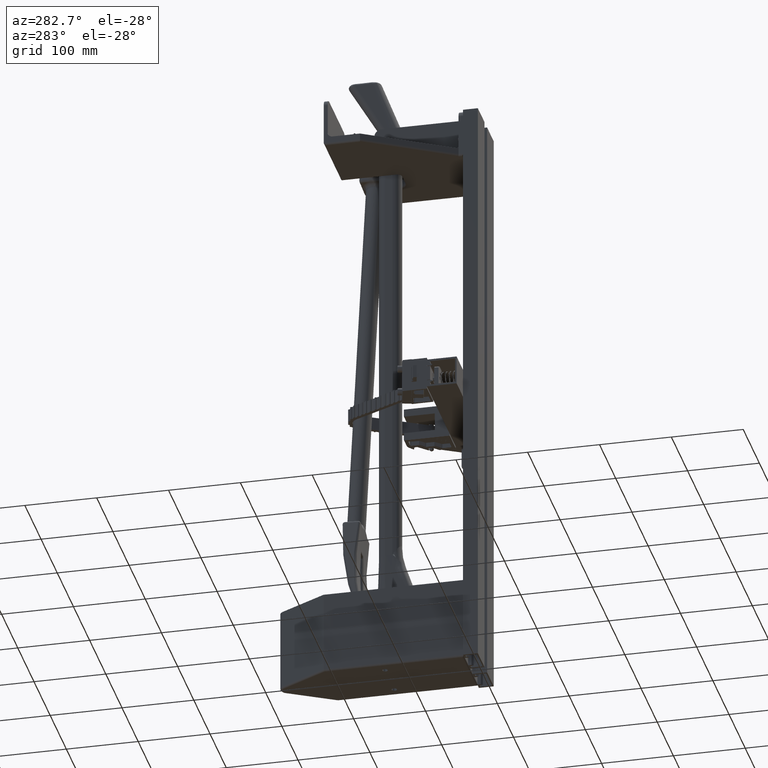
[diagram: clean part render]
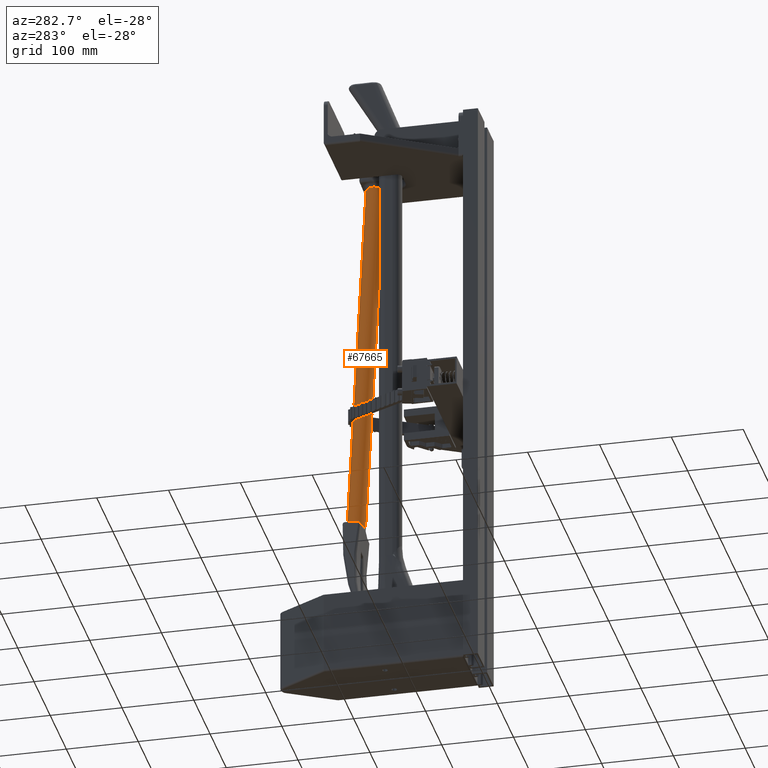
[diagram: same view with one face highlighted and labeled with its STEP entity id]
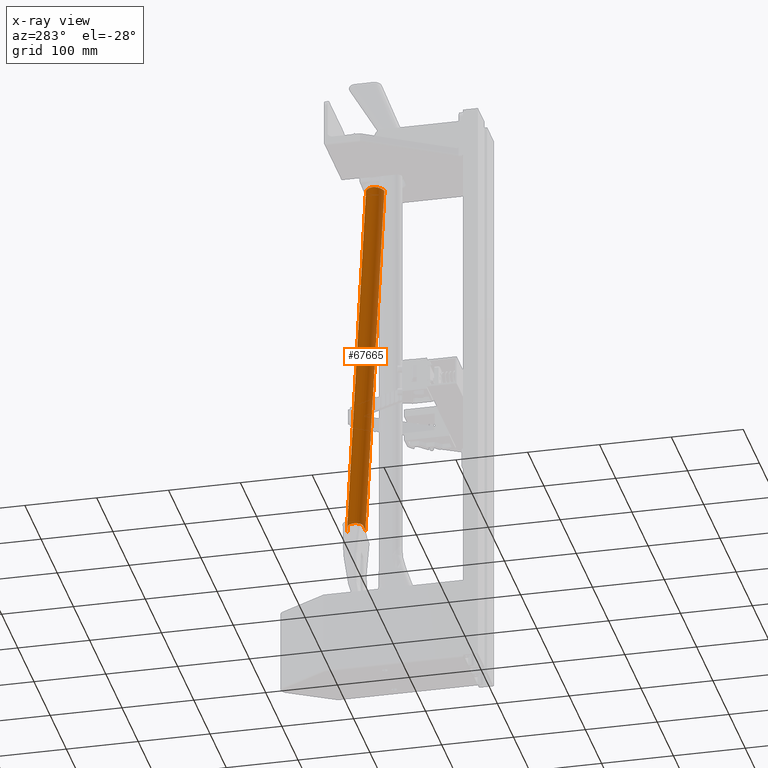
[diagram: x-ray of the same camera — body ghosted, the highlighted face saturated]
A machine part, auxiliary view. The second image highlights one B-rep face of the part: STEP entity #67665.
The next image is the same camera in x-ray: the body ghosted, the highlighted face saturated — about 0% of this face is hidden behind the body in this view.
In plain terms, the highlighted cylindrical surface (edge-blend (fillet) strip) has radius 12.7 mm, axis along (0.0633, -0.0348, 0.9974).
Its self-contained STEP definition (entity closure, byte-faithful):
#6961 = B_SPLINE_CURVE_WITH_KNOTS ( 'NONE', 3,
 ( #44569, #44573, #44574, #44575, #44576, #44577, #44578, #44579, #44580, #44581, #44582, #44583 ),
 .UNSPECIFIED., .F., .F.,
 ( 4, 2, 2, 2, 2, 4 ),
 ( 0.0000000000000000000, 0.001860697265574105800, 0.002791045898361159100, 0.003721394531148212900, 0.005582091796722323500, 0.007442789062296434500 ),
 .UNSPECIFIED. ) ;
#6962 = B_SPLINE_CURVE_WITH_KNOTS ( 'NONE', 3,
 ( #44518, #44552, #44554, #44556 ),
 .UNSPECIFIED., .F., .F.,
 ( 4, 4 ),
 ( 5.120144759562794700E-017, 0.0001951425113811401300 ),
 .UNSPECIFIED. ) ;
#6963 = B_SPLINE_CURVE_WITH_KNOTS ( 'NONE', 3,
 ( #44558, #44564, #44565, #44566, #44567, #44568 ),
 .UNSPECIFIED., .F., .F.,
 ( 4, 2, 4 ),
 ( 0.0000000000000000000, 0.002134510418358413500, 0.004269020836716827000 ),
 .UNSPECIFIED. ) ;
#6965 = B_SPLINE_CURVE_WITH_KNOTS ( 'NONE', 3,
 ( #44417, #44532, #44534, #44536, #44538, #44539, #44541, #44543 ),
 .UNSPECIFIED., .F., .F.,
 ( 4, 2, 2, 4 ),
 ( 0.0000000000000000000, 0.003140231042393741600, 0.004710346563590612400, 0.006280462084787484900 ),
 .UNSPECIFIED. ) ;
#6972 = B_SPLINE_CURVE_WITH_KNOTS ( 'NONE', 3,
 ( #44495, #44520, #44522, #44524, #44526, #44528 ),
 .UNSPECIFIED., .F., .F.,
 ( 4, 2, 4 ),
 ( 0.0000000000000000000, 0.002135449621330979100, 0.004270899242661958100 ),
 .UNSPECIFIED. ) ;
#6973 = B_SPLINE_CURVE_WITH_KNOTS ( 'NONE', 3,
 ( #44489, #44497, #44499, #44501, #44503, #44505, #44507, #44508, #44510, #44512, #44514, #44516 ),
 .UNSPECIFIED., .F., .F.,
 ( 4, 2, 2, 2, 2, 4 ),
 ( 0.007442789062296451000, 0.009304050983829342100, 0.01116531290536223500, 0.01209594386612868100, 0.01302657482689512400, 0.01488783674842801400 ),
 .UNSPECIFIED. ) ;
#6991 = B_SPLINE_CURVE_WITH_KNOTS ( 'NONE', 3,
 ( #44607, #44611, #44612, #44613, #44614, #44615, #44616, #44617, #44618, #44619, #44620, #44621, #44622, #44623, #44624, #44625, #44626, #44627 ),
 .UNSPECIFIED., .F., .F.,
 ( 4, 2, 2, 2, 2, 2, 2, 2, 4 ),
 ( 0.0000000000000000000, 0.001549146281355803800, 0.002323719422033708000, 0.003098292562711609800, 0.004647438844067412600, 0.006196585125423215300, 0.009294877688135012500, 0.01084402396949091100, 0.01239317025084681100 ),
 .UNSPECIFIED. ) ;
#6995 = B_SPLINE_CURVE_WITH_KNOTS ( 'NONE', 3,
 ( #44529, #44586, #44587, #44588 ),
 .UNSPECIFIED., .F., .F.,
 ( 4, 4 ),
 ( 1.634760458060131600E-005, 3.269521018721603200E-005 ),
 .UNSPECIFIED. ) ;
#6998 = B_SPLINE_CURVE_WITH_KNOTS ( 'NONE', 3,
 ( #44572, #44590, #44591, #44592, #44593, #44594, #44595, #44596, #44597, #44598, #44599, #44600, #44601, #44602, #44603, #44604, #44605, #44606 ),
 .UNSPECIFIED., .F., .F.,
 ( 4, 2, 2, 2, 2, 2, 2, 2, 4 ),
 ( -1.022221796951950700E-006, 0.001580250447222684100, 0.003161523116242319900, 0.006324068454281376800, 0.007905341123300905700, 0.009486613792320432900, 0.01027725012683019700, 0.01106788646133996200, 0.01264915913035940200 ),
 .UNSPECIFIED. ) ;
#8652 = ORIENTED_EDGE ( 'NONE', *, *, #25854, .T. ) ;
#18983 = FACE_OUTER_BOUND ( 'NONE', #26586, .T. ) ;
#18985 = CYLINDRICAL_SURFACE ( 'NONE', #56248, 0.5000000000000000000 ) ;
#19758 = CARTESIAN_POINT ( 'NONE',  ( 22.24334691355886700, 0.4999409714679747300, 0.007682776038628535800 ) ) ;
#19759 = CARTESIAN_POINT ( 'NONE',  ( 22.24295462100600700, 0.5000000000000020000, -9.333874257854392600E-016 ) ) ;
#19760 = CARTESIAN_POINT ( 'NONE',  ( 0.9785533905932734000, 0.5000000000000001100, 5.367763274363487600E-017 ) ) ;
#19761 = CARTESIAN_POINT ( 'NONE',  ( 0.9999999999999992200, 0.4166666666666666300, 0.2763853991962834700 ) ) ;
#19762 = CARTESIAN_POINT ( 'NONE',  ( 0.9999999999999992200, 0.2763853991962833000, 0.4166666666666666900 ) ) ;
#19763 = CARTESIAN_POINT ( 'NONE',  ( 0.9859056437066584500, 0.1232853945137265500, 0.4845623917511498500 ) ) ;
#19764 = CARTESIAN_POINT ( 'NONE',  ( 0.9859056437066542300, -0.1232853945136882200, 0.4845623917511595600 ) ) ;
#19765 = CARTESIAN_POINT ( 'NONE',  ( 0.9999999999999992200, -0.2763853991962831300, 0.4166666666666666900 ) ) ;
#19766 = CARTESIAN_POINT ( 'NONE',  ( 0.9999999999999992200, -0.4166666666666667400, 0.2763853991962831300 ) ) ;
#19767 = CARTESIAN_POINT ( 'NONE',  ( 0.9785533905932738400, -0.4999999999999998300, 1.018170009257836800E-017 ) ) ;
#19768 = CARTESIAN_POINT ( 'NONE',  ( 22.24940978952233200, -0.4999999999999979500, -2.766180753815019700E-020 ) ) ;
#19769 = CARTESIAN_POINT ( 'NONE',  ( 22.24944262065605800, -0.4999995857705233400, 0.0006436065199730021700 ) ) ;
#19770 = CARTESIAN_POINT ( 'NONE',  ( 22.00000000000000400, -0.3333333333333325400, 0.3726779962499637300 ) ) ;
#19771 = CARTESIAN_POINT ( 'NONE',  ( 22.00000000000000400, 0.3333333333333339300, 0.3726779962499662300 ) ) ;
#23158 = ORIENTED_EDGE ( 'NONE', *, *, #25853, .T. ) ;
#23165 = ORIENTED_EDGE ( 'NONE', *, *, #25849, .T. ) ;
#23166 = ORIENTED_EDGE ( 'NONE', *, *, #25848, .T. ) ;
#23167 = ORIENTED_EDGE ( 'NONE', *, *, #25852, .T. ) ;
#23168 = ORIENTED_EDGE ( 'NONE', *, *, #25850, .T. ) ;
#23169 = ORIENTED_EDGE ( 'NONE', *, *, #25847, .T. ) ;
#23170 = ORIENTED_EDGE ( 'NONE', *, *, #25851, .T. ) ;
#25847 = EDGE_CURVE ( 'NONE', #66513, #66515, #6973, .T. ) ;
#25848 = EDGE_CURVE ( 'NONE', #66517, #66519, #6972, .T. ) ;
#25849 = EDGE_CURVE ( 'NONE', #66519, #66520, #6965, .T. ) ;
#25850 = EDGE_CURVE ( 'NONE', #66511, #66513, #40508, .T. ) ;
#25851 = EDGE_CURVE ( 'NONE', #66510, #66511, #6962, .T. ) ;
#25852 = EDGE_CURVE ( 'NONE', #66515, #66517, #40514, .T. ) ;
#25853 = EDGE_CURVE ( 'NONE', #66520, #66522, #6963, .T. ) ;
#25854 = EDGE_CURVE ( 'NONE', #66522, #66524, #40516, .T. ) ;
#25855 = EDGE_CURVE ( 'NONE', #66524, #66526, #6961, .T. ) ;
#25856 = EDGE_CURVE ( 'NONE', #66528, #66526, #40513, .T. ) ;
#25857 = EDGE_CURVE ( 'NONE', #66528, #66529, #6995, .T. ) ;
#25858 = EDGE_CURVE ( 'NONE', #66529, #66531, #6998, .T. ) ;
#25859 = EDGE_CURVE ( 'NONE', #66531, #66533, #40520, .T. ) ;
#25860 = EDGE_CURVE ( 'NONE', #66533, #66510, #6991, .T. ) ;
#26586 = EDGE_LOOP ( 'NONE', ( #23170, #23168, #23169, #23167, #23166, #23165, #23158, #8652, #57253, #57233, #57228, #57197, #57249, #57193 ) ) ;
#37149 = AXIS2_PLACEMENT_3D ( 'NONE', #44549, #44560, #44561 ) ;
#37151 = AXIS2_PLACEMENT_3D ( 'NONE', #44562, #44570, #44571 ) ;
#37153 = AXIS2_PLACEMENT_3D ( 'NONE', #44589, #44608, #44609 ) ;
#40506 = VECTOR ( 'NONE', #44548, 39.37007874015748100 ) ;
#40508 = LINE ( 'NONE', #44546, #40506 ) ;
#40513 = LINE ( 'NONE', #44584, #40515 ) ;
#40514 = CIRCLE ( 'NONE', #37149, 0.5000000000000000000 ) ;
#40515 = VECTOR ( 'NONE', #44585, 39.37007874015748100 ) ;
#40516 = CIRCLE ( 'NONE', #37151, 0.5000000000000000000 ) ;
#40520 = CIRCLE ( 'NONE', #37153, 0.5000000000000000000 ) ;
#44417 = CARTESIAN_POINT ( 'NONE',  ( 0.9859056437066584500, 0.1232853945137265500, 0.4845623917511498500 ) ) ;
#44489 = CARTESIAN_POINT ( 'NONE',  ( 0.9785533905932734000, 0.5000000000000001100, 5.367763274363487600E-017 ) ) ;
#44495 = CARTESIAN_POINT ( 'NONE',  ( 0.9999999999999992200, 0.2763853991962833000, 0.4166666666666666900 ) ) ;
#44497 = CARTESIAN_POINT ( 'NONE',  ( 0.9785533905932735100, 0.5000000000000001100, 0.02470245854345807700 ) ) ;
#44499 = CARTESIAN_POINT ( 'NONE',  ( 0.9795507024572999200, 0.4981805664856535100, 0.04904527500002253000 ) ) ;
#44501 = CARTESIAN_POINT ( 'NONE',  ( 0.9830436828916653300, 0.4910861457405466500, 0.09707581205165935500 ) ) ;
#44503 = CARTESIAN_POINT ( 'NONE',  ( 0.9855366328427437300, 0.4858115672705708400, 0.1207637896298326100 ) ) ;
#44505 = CARTESIAN_POINT ( 'NONE',  ( 0.9896005243362149300, 0.4752468900223053600, 0.1558511676858370100 ) ) ;
#44507 = CARTESIAN_POINT ( 'NONE',  ( 0.9910046062181817600, 0.4712773352028195000, 0.1674704072245633800 ) ) ;
#44508 = CARTESIAN_POINT ( 'NONE',  ( 0.9936893458592558300, 0.4625543049837693700, 0.1902424214333221500 ) ) ;
#44510 = CARTESIAN_POINT ( 'NONE',  ( 0.9949750328940383200, 0.4577890888078171600, 0.2014377410942885200 ) ) ;
#44512 = CARTESIAN_POINT ( 'NONE',  ( 0.9983555669291148700, 0.4422809242208158300, 0.2344773710724014900 ) ) ;
#44514 = CARTESIAN_POINT ( 'NONE',  ( 0.9999999999999998900, 0.4303359478457137700, 0.2557781824577535800 ) ) ;
#44516 = CARTESIAN_POINT ( 'NONE',  ( 0.9999999999999992200, 0.4166666666666666300, 0.2763853991962834700 ) ) ;
#44518 = CARTESIAN_POINT ( 'NONE',  ( 22.24334691355886700, 0.4999409714679747300, 0.007682776038628535800 ) ) ;
#44520 = CARTESIAN_POINT ( 'NONE',  ( 0.9999999999999993300, 0.2527374651037513400, 0.4323529315570631700 ) ) ;
#44522 = CARTESIAN_POINT ( 'NONE',  ( 0.9978470697390552400, 0.2281849706257491300, 0.4457693913214511600 ) ) ;
#44524 = CARTESIAN_POINT ( 'NONE',  ( 0.9922881610980631700, 0.1771642162455588600, 0.4683925400138945800 ) ) ;
#44526 = CARTESIAN_POINT ( 'NONE',  ( 0.9888438255493894300, 0.1505679765822977000, 0.4776209865762219300 ) ) ;
#44528 = CARTESIAN_POINT ( 'NONE',  ( 0.9859056437066584500, 0.1232853945137265500, 0.4845623917511498500 ) ) ;
#44529 = CARTESIAN_POINT ( 'NONE',  ( 22.24940978952233200, -0.4999999999999979500, -2.766180753815019700E-020 ) ) ;
#44532 = CARTESIAN_POINT ( 'NONE',  ( 0.9815460585587165700, 0.08280432630559553300, 0.4948618383226030000 ) ) ;
#44534 = CARTESIAN_POINT ( 'NONE',  ( 0.9790941349435977600, 0.04190367680354888100, 0.4999518012964507800 ) ) ;
#44536 = CARTESIAN_POINT ( 'NONE',  ( 0.9790614486667939000, -0.02008316681046812600, 0.5000235962913832700 ) ) ;
#44538 = CARTESIAN_POINT ( 'NONE',  ( 0.9796388599899775700, -0.04092089896799802600, 0.4987632098629567500 ) ) ;
#44539 = CARTESIAN_POINT ( 'NONE',  ( 0.9819730230843779500, -0.08251736450180842400, 0.4935890436798863200 ) ) ;
#44541 = CARTESIAN_POINT ( 'NONE',  ( 0.9837247612364149500, -0.1030347401427260100, 0.4897146898984876500 ) ) ;
#44543 = CARTESIAN_POINT ( 'NONE',  ( 0.9859056437066542300, -0.1232853945136882200, 0.4845623917511595600 ) ) ;
#44546 = CARTESIAN_POINT ( 'NONE',  ( 22.25000000000000400, 0.5000000000000020000, 6.123233995736766000E-017 ) ) ;
#44548 = DIRECTION ( 'NONE',  ( -1.000000000000000000, -9.106159978880877400E-017, -0.0000000000000000000 ) ) ;
#44549 = CARTESIAN_POINT ( 'NONE',  ( 0.9999999999999992200, 9.106159978880868800E-017, 0.0000000000000000000 ) ) ;
#44552 = CARTESIAN_POINT ( 'NONE',  ( 22.24308534123502700, 0.4999803261458456400, 0.005121850692418078400 ) ) ;
#44554 = CARTESIAN_POINT ( 'NONE',  ( 22.24295462100600700, 0.5000000000000020000, 0.002560925346207582900 ) ) ;
#44556 = CARTESIAN_POINT ( 'NONE',  ( 22.24295462100600700, 0.5000000000000020000, -9.333874257854392600E-016 ) ) ;
#44558 = CARTESIAN_POINT ( 'NONE',  ( 0.9859056437066542300, -0.1232853945136882200, 0.4845623917511595600 ) ) ;
#44560 = DIRECTION ( 'NONE',  ( 1.000000000000000000, 9.106159978880877400E-017, -0.0000000000000000000 ) ) ;
#44561 = DIRECTION ( 'NONE',  ( 0.0000000000000000000, -1.000000000000000000, 4.440892098500626200E-015 ) ) ;
#44562 = CARTESIAN_POINT ( 'NONE',  ( 0.9999999999999992200, 9.106159978880868800E-017, 0.0000000000000000000 ) ) ;
#44564 = CARTESIAN_POINT ( 'NONE',  ( 0.9888553211958718300, -0.1506747197777151500, 0.4775938283047966900 ) ) ;
#44565 = CARTESIAN_POINT ( 'NONE',  ( 0.9922735854390576400, -0.1770492707495978400, 0.4684342945134057900 ) ) ;
#44566 = CARTESIAN_POINT ( 'NONE',  ( 0.9978316201805176300, -0.2280244403580204700, 0.4458497360643472500 ) ) ;
#44567 = CARTESIAN_POINT ( 'NONE',  ( 1.000000000000001100, -0.2526239771723056100, 0.4324282109344311200 ) ) ;
#44568 = CARTESIAN_POINT ( 'NONE',  ( 0.9999999999999992200, -0.2763853991962831300, 0.4166666666666666900 ) ) ;
#44569 = CARTESIAN_POINT ( 'NONE',  ( 0.9999999999999992200, -0.4166666666666667400, 0.2763853991962831300 ) ) ;
#44570 = DIRECTION ( 'NONE',  ( 1.000000000000000000, 9.106159978880877400E-017, -0.0000000000000000000 ) ) ;
#44571 = DIRECTION ( 'NONE',  ( 0.0000000000000000000, -1.000000000000000000, 1.776356839400250500E-015 ) ) ;
#44572 = CARTESIAN_POINT ( 'NONE',  ( 22.24944262065605800, -0.4999995857705233400, 0.0006436065199730021700 ) ) ;
#44573 = CARTESIAN_POINT ( 'NONE',  ( 0.9999999999999995600, -0.4303346969948370600, 0.2557800681864015900 ) ) ;
#44574 = CARTESIAN_POINT ( 'NONE',  ( 0.9983561383558858800, -0.4422751848501155200, 0.2344867368853259500 ) ) ;
#44575 = CARTESIAN_POINT ( 'NONE',  ( 0.9949782185183830800, -0.4577760313660279600, 0.2014669881993133000 ) ) ;
#44576 = CARTESIAN_POINT ( 'NONE',  ( 0.9936936496567263500, -0.4625386923160033100, 0.1902797481188950300 ) ) ;
#44577 = CARTESIAN_POINT ( 'NONE',  ( 0.9910113705099449200, -0.4712569796586595400, 0.1675269636702880800 ) ) ;
#44578 = CARTESIAN_POINT ( 'NONE',  ( 0.9896089203241829100, -0.4752239127237177200, 0.1559218876165915100 ) ) ;
#44579 = CARTESIAN_POINT ( 'NONE',  ( 0.9855417265983796900, -0.4858006174623384900, 0.1208112955093757800 ) ) ;
#44580 = CARTESIAN_POINT ( 'NONE',  ( 0.9830466729579111500, -0.4910798960140901900, 0.09711015283327266400 ) ) ;
#44581 = CARTESIAN_POINT ( 'NONE',  ( 0.9795511614049469100, -0.4981798109153378100, 0.04905835350753082900 ) ) ;
#44582 = CARTESIAN_POINT ( 'NONE',  ( 0.9785533905932739500, -0.4999999999999999400, 0.02469496449318403200 ) ) ;
#44583 = CARTESIAN_POINT ( 'NONE',  ( 0.9785533905932738400, -0.4999999999999998300, 1.018170009257836800E-017 ) ) ;
#44584 = CARTESIAN_POINT ( 'NONE',  ( 22.25000000000000400, -0.4999999999999979500, 0.0000000000000000000 ) ) ;
#44585 = DIRECTION ( 'NONE',  ( -1.000000000000000000, -9.106159978880877400E-017, -0.0000000000000000000 ) ) ;
#44586 = CARTESIAN_POINT ( 'NONE',  ( 22.24940978952227900, -0.4999999999999979500, 0.0002148144791706984500 ) ) ;
#44587 = CARTESIAN_POINT ( 'NONE',  ( 22.24942082026825200, -0.4999998608549076600, 0.0004299012364526913600 ) ) ;
#44588 = CARTESIAN_POINT ( 'NONE',  ( 22.24944262065605800, -0.4999995857705233400, 0.0006436065199730021700 ) ) ;
#44589 = CARTESIAN_POINT ( 'NONE',  ( 22.00000000000000400, 2.003355195353793000E-015, 0.0000000000000000000 ) ) ;
#44590 = CARTESIAN_POINT ( 'NONE',  ( 22.23585751159502500, -0.4999793935776563100, 0.01633034636993215700 ) ) ;
#44591 = CARTESIAN_POINT ( 'NONE',  ( 22.22225403880635900, -0.4992214060672481900, 0.03203936086512811100 ) ) ;
#44592 = CARTESIAN_POINT ( 'NONE',  ( 22.19526065962240900, -0.4962114220270612600, 0.06342521241815317300 ) ) ;
#44593 = CARTESIAN_POINT ( 'NONE',  ( 22.18181223721081400, -0.4939506341691554100, 0.07916979240145068100 ) ) ;
#44594 = CARTESIAN_POINT ( 'NONE',  ( 22.14221330847033200, -0.4848612098385811600, 0.1262138950110863200 ) ) ;
#44595 = CARTESIAN_POINT ( 'NONE',  ( 22.11675362673181100, -0.4758058703223427800, 0.1573175575736093800 ) ) ;
#44596 = CARTESIAN_POINT ( 'NONE',  ( 22.08122121354691800, -0.4567031182637664200, 0.2042235828857253400 ) ) ;
#44597 = CARTESIAN_POINT ( 'NONE',  ( 22.06980581343857400, -0.4493885794687714200, 0.2199325028924719600 ) ) ;
#44598 = CARTESIAN_POINT ( 'NONE',  ( 22.04839854080800900, -0.4325113816935017800, 0.2515040872254079000 ) ) ;
#44599 = CARTESIAN_POINT ( 'NONE',  ( 22.03856671535821100, -0.4230837836598657100, 0.2671210232245504500 ) ) ;
#44600 = CARTESIAN_POINT ( 'NONE',  ( 22.02566795285227700, -0.4071413702681510600, 0.2903864440315551100 ) ) ;
#44601 = CARTESIAN_POINT ( 'NONE',  ( 22.02167947982809400, -0.4015250767042934900, 0.2981152590475412100 ) ) ;
#44602 = CARTESIAN_POINT ( 'NONE',  ( 22.01447770519194300, -0.3895956742959941200, 0.3135447423721550200 ) ) ;
#44603 = CARTESIAN_POINT ( 'NONE',  ( 22.01124962791610400, -0.3832404436912481000, 0.3212914187433260600 ) ) ;
#44604 = CARTESIAN_POINT ( 'NONE',  ( 22.00323363839129000, -0.3633688710823319600, 0.3440475509045403700 ) ) ;
#44605 = CARTESIAN_POINT ( 'NONE',  ( 22.00000000000000400, -0.3490247818167373500, 0.3586431380602319600 ) ) ;
#44606 = CARTESIAN_POINT ( 'NONE',  ( 22.00000000000000400, -0.3333333333333325400, 0.3726779962499637300 ) ) ;
#44607 = CARTESIAN_POINT ( 'NONE',  ( 22.00000000000000400, 0.3333333333333339300, 0.3726779962499662300 ) ) ;
#44608 = DIRECTION ( 'NONE',  ( -1.000000000000000000, -0.0000000000000000000, 0.0000000000000000000 ) ) ;
#44609 = DIRECTION ( 'NONE',  ( 0.0000000000000000000, 0.0000000000000000000, -1.000000000000000000 ) ) ;
#44611 = CARTESIAN_POINT ( 'NONE',  ( 22.00000000000000000, 0.3487318254413264200, 0.3589051662081801900 ) ) ;
#44612 = CARTESIAN_POINT ( 'NONE',  ( 22.00311658178637900, 0.3628321911339826300, 0.3445923477001023300 ) ) ;
#44613 = CARTESIAN_POINT ( 'NONE',  ( 22.01086261461620800, 0.3823940402993303300, 0.3222926763016716900 ) ) ;
#44614 = CARTESIAN_POINT ( 'NONE',  ( 22.01398676394916300, 0.3886628349959935200, 0.3146954240824608700 ) ) ;
#44615 = CARTESIAN_POINT ( 'NONE',  ( 22.02096769810914300, 0.4004468300014696900, 0.2995569154390144200 ) ) ;
#44616 = CARTESIAN_POINT ( 'NONE',  ( 22.02483652693855000, 0.4060002078325889400, 0.2919749226520645400 ) ) ;
#44617 = CARTESIAN_POINT ( 'NONE',  ( 22.03735557323424700, 0.4217791183978371600, 0.2691551079854803100 ) ) ;
#44618 = CARTESIAN_POINT ( 'NONE',  ( 22.04690690212194000, 0.4311310865868928600, 0.2538421061426088800 ) ) ;
#44619 = CARTESIAN_POINT ( 'NONE',  ( 22.06771726403594900, 0.4479141379956902400, 0.2228962845273303500 ) ) ;
#44620 = CARTESIAN_POINT ( 'NONE',  ( 22.07886483679905300, 0.4552405391296468500, 0.2074427674063716000 ) ) ;
#44621 = CARTESIAN_POINT ( 'NONE',  ( 22.11352905476034200, 0.4744037788817155300, 0.1613903821415781900 ) ) ;
#44622 = CARTESIAN_POINT ( 'NONE',  ( 22.13839040142940800, 0.4835888113695770400, 0.1308702176387208900 ) ) ;
#44623 = CARTESIAN_POINT ( 'NONE',  ( 22.17708408131483800, 0.4930161342690444500, 0.08474301999026601100 ) ) ;
#44624 = CARTESIAN_POINT ( 'NONE',  ( 22.19024773804932600, 0.4954180476264435400, 0.06928940608721743900 ) ) ;
#44625 = CARTESIAN_POINT ( 'NONE',  ( 22.21669255573138800, 0.4987576629040767500, 0.03848191009266469000 ) ) ;
#44626 = CARTESIAN_POINT ( 'NONE',  ( 22.23000175621057700, 0.4997041236222007400, 0.02309516623599944900 ) ) ;
#44627 = CARTESIAN_POINT ( 'NONE',  ( 22.24334691355886700, 0.4999409714679747300, 0.007682776038628535800 ) ) ;
#56248 = AXIS2_PLACEMENT_3D ( 'NONE', #57594, #57575, #57577 ) ;
#57193 = ORIENTED_EDGE ( 'NONE', *, *, #25860, .T. ) ;
#57197 = ORIENTED_EDGE ( 'NONE', *, *, #25858, .T. ) ;
#57228 = ORIENTED_EDGE ( 'NONE', *, *, #25857, .T. ) ;
#57233 = ORIENTED_EDGE ( 'NONE', *, *, #25856, .F. ) ;
#57249 = ORIENTED_EDGE ( 'NONE', *, *, #25859, .T. ) ;
#57253 = ORIENTED_EDGE ( 'NONE', *, *, #25855, .T. ) ;
#57575 = DIRECTION ( 'NONE',  ( -1.000000000000000000, -9.106159978880877400E-017, -0.0000000000000000000 ) ) ;
#57577 = DIRECTION ( 'NONE',  ( 0.0000000000000000000, -1.000000000000000000, 0.0000000000000000000 ) ) ;
#57594 = CARTESIAN_POINT ( 'NONE',  ( 22.25000000000000400, 2.026120595300995200E-015, 0.0000000000000000000 ) ) ;
#66510 = VERTEX_POINT ( 'NONE', #19758 ) ;
#66511 = VERTEX_POINT ( 'NONE', #19759 ) ;
#66513 = VERTEX_POINT ( 'NONE', #19760 ) ;
#66515 = VERTEX_POINT ( 'NONE', #19761 ) ;
#66517 = VERTEX_POINT ( 'NONE', #19762 ) ;
#66519 = VERTEX_POINT ( 'NONE', #19763 ) ;
#66520 = VERTEX_POINT ( 'NONE', #19764 ) ;
#66522 = VERTEX_POINT ( 'NONE', #19765 ) ;
#66524 = VERTEX_POINT ( 'NONE', #19766 ) ;
#66526 = VERTEX_POINT ( 'NONE', #19767 ) ;
#66528 = VERTEX_POINT ( 'NONE', #19768 ) ;
#66529 = VERTEX_POINT ( 'NONE', #19769 ) ;
#66531 = VERTEX_POINT ( 'NONE', #19770 ) ;
#66533 = VERTEX_POINT ( 'NONE', #19771 ) ;
#67665 = ADVANCED_FACE ( 'NONE', ( #18983 ), #18985, .T. ) ;